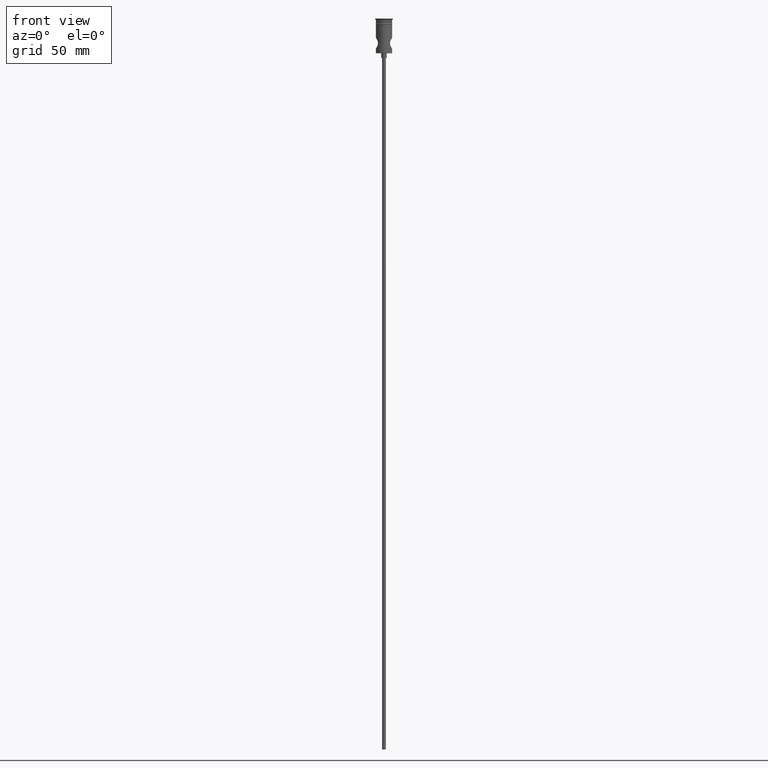
[diagram: clean part render]
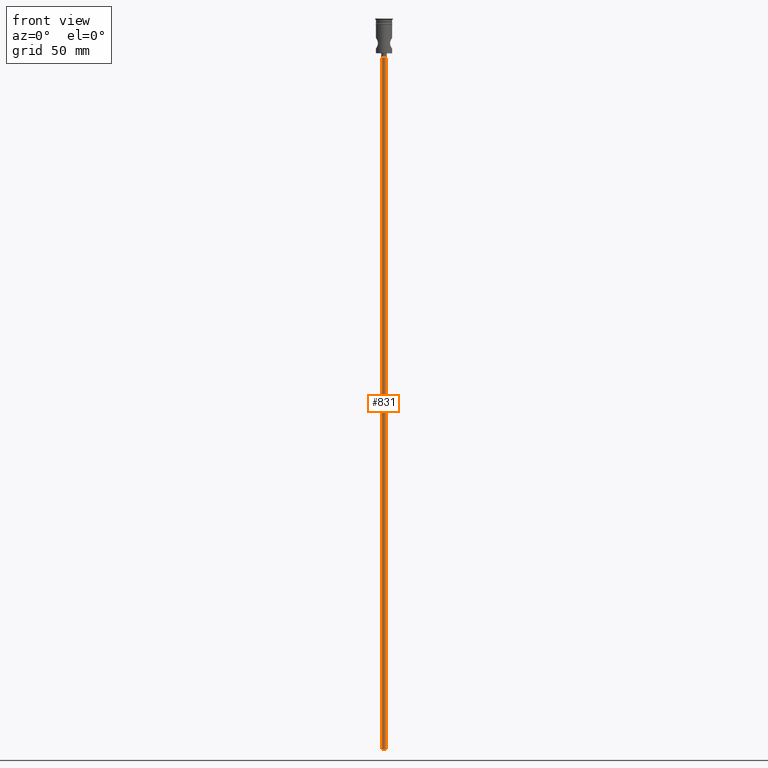
[diagram: same view with one face highlighted and labeled with its STEP entity id]
A machine part, front view. The second image highlights one B-rep face of the part: STEP entity #831.
In plain terms, the highlighted cylindrical surface (edge-blend (fillet) strip) has radius 1.25 mm, axis along (-0, -0, 1).
Its self-contained STEP definition (entity closure, byte-faithful):
#10 = VECTOR ( 'NONE', #704, 1000.000000000000000 ) ;
#55 = FACE_OUTER_BOUND ( 'NONE', #337, .T. ) ;
#123 = CARTESIAN_POINT ( 'NONE',  ( 1.250000000000000000, 0.000000000000000000, -472.5000000000000568 ) ) ;
#135 = ORIENTED_EDGE ( 'NONE', *, *, #945, .T. ) ;
#150 = VERTEX_POINT ( 'NONE', #279 ) ;
#155 = CARTESIAN_POINT ( 'NONE',  ( -1.250000000000000000, 1.530808498934191571E-16, -472.5000000000000568 ) ) ;
#207 = AXIS2_PLACEMENT_3D ( 'NONE', #1050, #601, #942 ) ;
#228 = LINE ( 'NONE', #123, #1082 ) ;
#236 = ORIENTED_EDGE ( 'NONE', *, *, #816, .F. ) ;
#243 = DIRECTION ( 'NONE',  ( -0.000000000000000000, -0.000000000000000000, 1.000000000000000000 ) ) ;
#279 = CARTESIAN_POINT ( 'NONE',  ( 1.250000000000000000, 0.000000000000000000, -25.50000000000000000 ) ) ;
#292 = VERTEX_POINT ( 'NONE', #764 ) ;
#337 = EDGE_LOOP ( 'NONE', ( #1140, #236, #887, #135 ) ) ;
#376 = DIRECTION ( 'NONE',  ( -0.000000000000000000, -0.000000000000000000, 1.000000000000000000 ) ) ;
#402 = VERTEX_POINT ( 'NONE', #1096 ) ;
#418 = DIRECTION ( 'NONE',  ( 0.000000000000000000, 0.000000000000000000, -1.000000000000000000 ) ) ;
#517 = CIRCLE ( 'NONE', #1387, 1.250000000000000000 ) ;
#601 = DIRECTION ( 'NONE',  ( 0.000000000000000000, 0.000000000000000000, -1.000000000000000000 ) ) ;
#699 = LINE ( 'NONE', #155, #10 ) ;
#704 = DIRECTION ( 'NONE',  ( -0.000000000000000000, -0.000000000000000000, 1.000000000000000000 ) ) ;
#722 = CARTESIAN_POINT ( 'NONE',  ( 0.000000000000000000, 0.000000000000000000, -472.5000000000000568 ) ) ;
#751 = EDGE_CURVE ( 'NONE', #292, #150, #228, .T. ) ;
#764 = CARTESIAN_POINT ( 'NONE',  ( 1.250000000000000000, 0.000000000000000000, -472.5000000000000568 ) ) ;
#816 = EDGE_CURVE ( 'NONE', #292, #402, #1160, .T. ) ;
#831 = ADVANCED_FACE ( 'NONE', ( #55 ), #1386, .T. ) ;
#887 = ORIENTED_EDGE ( 'NONE', *, *, #751, .T. ) ;
#942 = DIRECTION ( 'NONE',  ( -1.000000000000000000, 0.000000000000000000, 0.000000000000000000 ) ) ;
#945 = EDGE_CURVE ( 'NONE', #150, #1037, #517, .T. ) ;
#946 = AXIS2_PLACEMENT_3D ( 'NONE', #722, #376, #1393 ) ;
#984 = CARTESIAN_POINT ( 'NONE',  ( 0.000000000000000000, 0.000000000000000000, -25.50000000000000000 ) ) ;
#1037 = VERTEX_POINT ( 'NONE', #1316 ) ;
#1050 = CARTESIAN_POINT ( 'NONE',  ( 0.000000000000000000, 0.000000000000000000, -472.5000000000000568 ) ) ;
#1082 = VECTOR ( 'NONE', #243, 1000.000000000000000 ) ;
#1096 = CARTESIAN_POINT ( 'NONE',  ( -1.250000000000000000, 1.530808498934191571E-16, -472.5000000000000568 ) ) ;
#1140 = ORIENTED_EDGE ( 'NONE', *, *, #1369, .F. ) ;
#1160 = CIRCLE ( 'NONE', #207, 1.250000000000000000 ) ;
#1197 = DIRECTION ( 'NONE',  ( -1.000000000000000000, 0.000000000000000000, 0.000000000000000000 ) ) ;
#1316 = CARTESIAN_POINT ( 'NONE',  ( -1.250000000000000000, 1.530808498934191571E-16, -25.50000000000000000 ) ) ;
#1369 = EDGE_CURVE ( 'NONE', #402, #1037, #699, .T. ) ;
#1386 = CYLINDRICAL_SURFACE ( 'NONE', #946, 1.250000000000000000 ) ;
#1387 = AXIS2_PLACEMENT_3D ( 'NONE', #984, #418, #1197 ) ;
#1393 = DIRECTION ( 'NONE',  ( 1.000000000000000000, 0.000000000000000000, 0.000000000000000000 ) ) ;